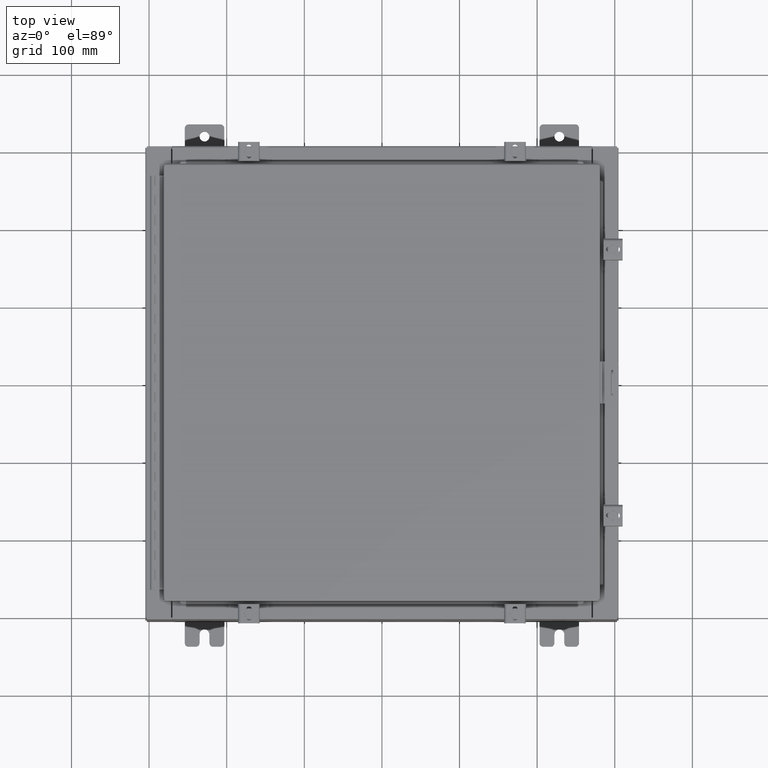
[diagram: clean part render]
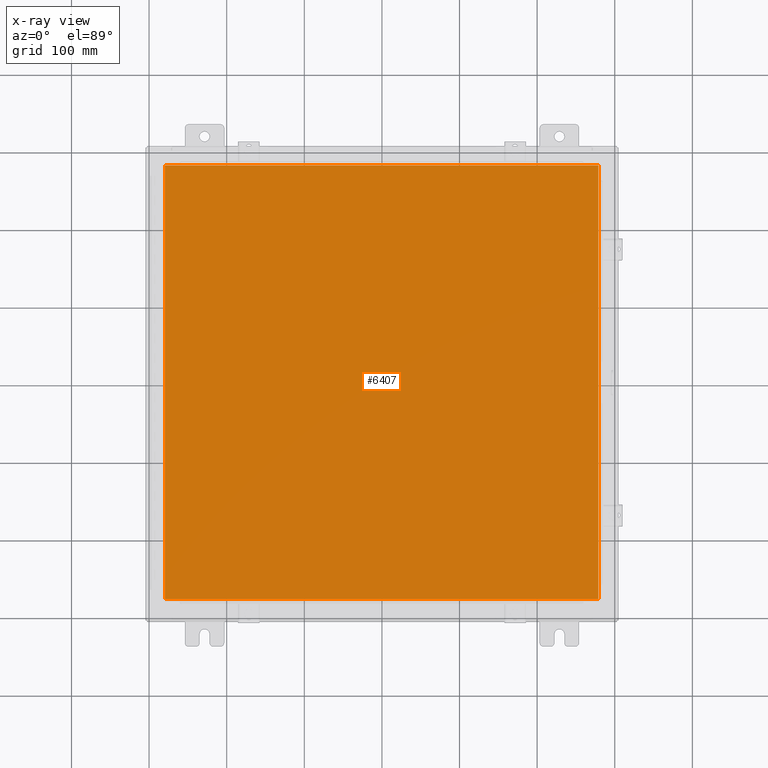
[diagram: x-ray — body ghosted, one internal face saturated and labeled with its STEP entity id]
A machine part, top view, then the same camera in x-ray: the body is ghosted and one INTERNAL B-rep face — a face not visible from any outside direction — is saturated and labeled: STEP entity #6407.
In plain terms, the highlighted planar face has unit normal (0, 0, -1).
Its self-contained STEP definition (entity closure, byte-faithful):
#409 = VECTOR ( 'NONE', #4567, 39.37007874015748100 ) ;
#1041 = CARTESIAN_POINT ( 'NONE',  ( 10.99029999999999600, -11.00630000000000100, -0.07470000000000000300 ) ) ;
#4567 = DIRECTION ( 'NONE',  ( 0.0000000000000000000, -1.000000000000000000, 0.0000000000000000000 ) ) ;
#5065 = VERTEX_POINT ( 'NONE', #7046 ) ;
#5497 = VECTOR ( 'NONE', #17331, 39.37007874015748100 ) ;
#6407 = ADVANCED_FACE ( 'NONE', ( #15613 ), #18495, .T. ) ;
#7019 = ORIENTED_EDGE ( 'NONE', *, *, #20910, .F. ) ;
#7036 = LINE ( 'NONE', #22091, #409 ) ;
#7046 = CARTESIAN_POINT ( 'NONE',  ( -10.99030000000000000, -11.00630000000000100, -0.07470000000000000300 ) ) ;
#7557 = VECTOR ( 'NONE', #8705, 39.37007874015748100 ) ;
#7574 = DIRECTION ( 'NONE',  ( 0.0000000000000000000, 0.0000000000000000000, -1.000000000000000000 ) ) ;
#8705 = DIRECTION ( 'NONE',  ( 0.0000000000000000000, 1.000000000000000000, 0.0000000000000000000 ) ) ;
#10044 = EDGE_CURVE ( 'NONE', #5065, #21273, #20398, .T. ) ;
#11240 = AXIS2_PLACEMENT_3D ( 'NONE', #32444, #7574, #20927 ) ;
#14142 = VERTEX_POINT ( 'NONE', #32303 ) ;
#15613 = FACE_OUTER_BOUND ( 'NONE', #31045, .T. ) ;
#15980 = VERTEX_POINT ( 'NONE', #25382 ) ;
#17209 = CARTESIAN_POINT ( 'NONE',  ( -10.99030000000000000, -11.00630000000000100, -0.07469999999999910000 ) ) ;
#17331 = DIRECTION ( 'NONE',  ( -1.000000000000000000, -0.0000000000000000000, -0.0000000000000000000 ) ) ;
#18495 = PLANE ( 'NONE',  #11240 ) ;
#18777 = LINE ( 'NONE', #32388, #5497 ) ;
#19077 = EDGE_CURVE ( 'NONE', #21273, #15980, #27579, .T. ) ;
#19574 = VECTOR ( 'NONE', #19753, 39.37007874015748100 ) ;
#19753 = DIRECTION ( 'NONE',  ( 1.000000000000000000, -0.0000000000000000000, -0.0000000000000000000 ) ) ;
#20031 = ORIENTED_EDGE ( 'NONE', *, *, #20975, .F. ) ;
#20398 = LINE ( 'NONE', #17209, #19574 ) ;
#20910 = EDGE_CURVE ( 'NONE', #14142, #5065, #7036, .T. ) ;
#20927 = DIRECTION ( 'NONE',  ( -1.000000000000000000, 0.0000000000000000000, -0.0000000000000000000 ) ) ;
#20975 = EDGE_CURVE ( 'NONE', #15980, #14142, #18777, .T. ) ;
#21273 = VERTEX_POINT ( 'NONE', #1041 ) ;
#21496 = ORIENTED_EDGE ( 'NONE', *, *, #19077, .F. ) ;
#21569 = ORIENTED_EDGE ( 'NONE', *, *, #10044, .F. ) ;
#22091 = CARTESIAN_POINT ( 'NONE',  ( -10.99030000000000500, 11.00629999999999600, -0.07470000000000133500 ) ) ;
#25382 = CARTESIAN_POINT ( 'NONE',  ( 10.99029999999999600, 11.00629999999999600, -0.07470000000000000300 ) ) ;
#26215 = CARTESIAN_POINT ( 'NONE',  ( 10.99029999999999600, -11.00630000000000100, -0.07470000000000019700 ) ) ;
#27579 = LINE ( 'NONE', #26215, #7557 ) ;
#31045 = EDGE_LOOP ( 'NONE', ( #21496, #21569, #7019, #20031 ) ) ;
#32303 = CARTESIAN_POINT ( 'NONE',  ( -10.99030000000000100, 11.00629999999999600, -0.07470000000000000300 ) ) ;
#32388 = CARTESIAN_POINT ( 'NONE',  ( 10.99029999999999800, 11.00629999999999600, -0.07470000000000019700 ) ) ;
#32444 = CARTESIAN_POINT ( 'NONE',  ( 0.0000000000000000000, 0.0000000000000000000, -0.07470000000000000300 ) ) ;